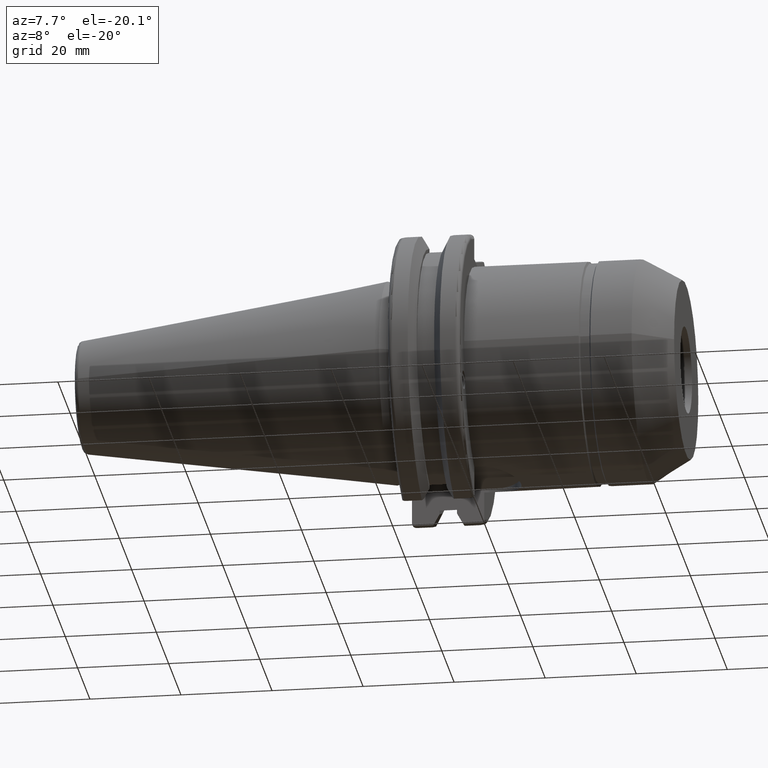
[diagram: clean part render]
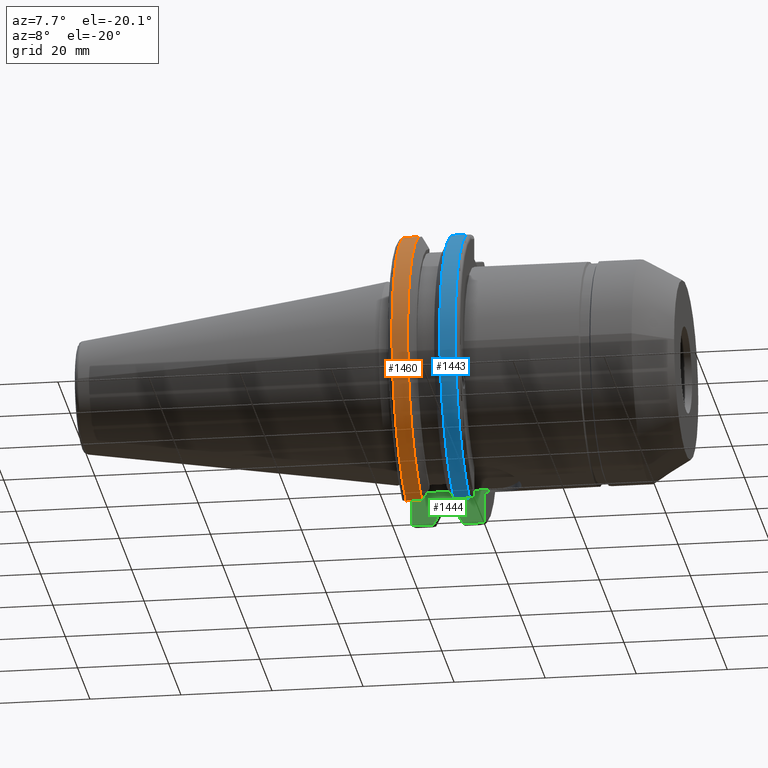
[diagram: same view with three faces highlighted in distinct colors, each labeled with its STEP entity id]
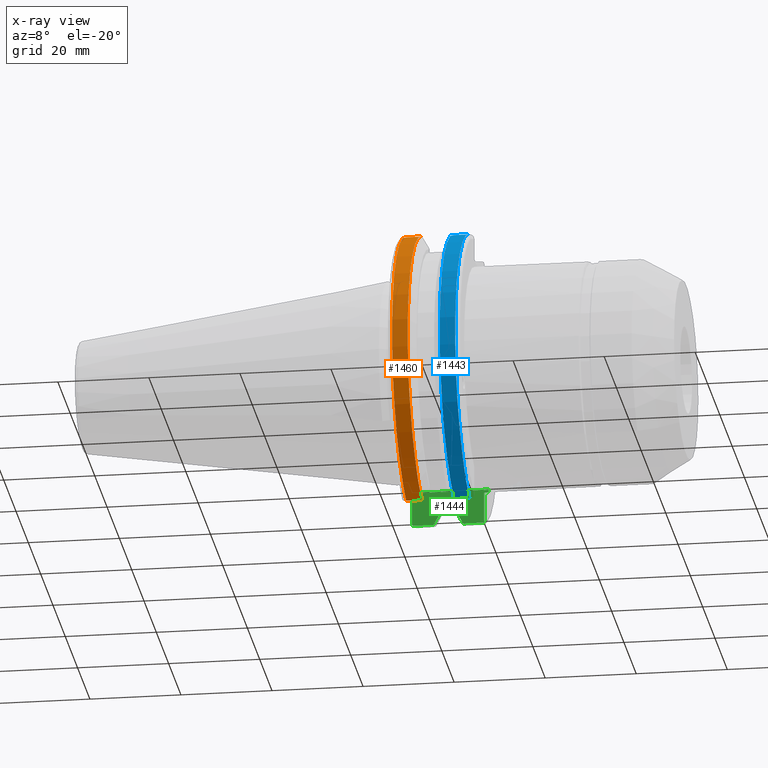
[diagram: x-ray of the same camera — body ghosted, the three highlighted faces saturated]
A machine part, auxiliary view with three faces highlighted in distinct colors.
The next image is the same camera in x-ray (body ghosted, the three faces saturated) — at least one of them is partly hidden behind the body in this view.
Their STEP definitions:

[orange] entity #1460 — the highlighted cylindrical surface (partial cylindrical patch) has radius 31.75 mm, axis along (1, 0, 0).
#221=FACE_OUTER_BOUND('',#317,.T.);
#317=EDGE_LOOP('',(#1325,#1326,#1327,#1328));
#386=LINE('',#2647,#467);
#391=LINE('',#2714,#472);
#467=VECTOR('',#1987,10.);
#472=VECTOR('',#2024,10.);
#535=CIRCLE('',#1613,31.75);
#554=CIRCLE('',#1660,31.75);
#671=VERTEX_POINT('',#2626);
#672=VERTEX_POINT('',#2635);
#673=VERTEX_POINT('',#2646);
#685=VERTEX_POINT('',#2710);
#862=EDGE_CURVE('',#671,#672,#535,.T.);
#864=EDGE_CURVE('',#672,#673,#386,.T.);
#884=EDGE_CURVE('',#685,#671,#391,.T.);
#912=EDGE_CURVE('',#673,#685,#554,.T.);
#1325=ORIENTED_EDGE('',*,*,#862,.F.);
#1326=ORIENTED_EDGE('',*,*,#884,.F.);
#1327=ORIENTED_EDGE('',*,*,#912,.F.);
#1328=ORIENTED_EDGE('',*,*,#864,.F.);
#1381=CYLINDRICAL_SURFACE('',#1659,31.75);
#1460=ADVANCED_FACE('',(#221),#1381,.T.);
#1613=AXIS2_PLACEMENT_3D('',#2636,#1983,#1984);
#1659=AXIS2_PLACEMENT_3D('',#2783,#2093,#2094);
#1660=AXIS2_PLACEMENT_3D('',#2784,#2095,#2096);
#1983=DIRECTION('center_axis',(-1.,0.,0.));
#1984=DIRECTION('ref_axis',(0.,-1.,1.60812264967664E-16));
#1987=DIRECTION('',(1.,0.,0.));
#2024=DIRECTION('',(-1.,0.,0.));
#2093=DIRECTION('center_axis',(1.,0.,0.));
#2094=DIRECTION('ref_axis',(0.,-1.,1.22464679914735E-16));
#2095=DIRECTION('center_axis',(1.,0.,0.));
#2096=DIRECTION('ref_axis',(0.,0.,-1.));
#2626=CARTESIAN_POINT('',(4.175,-8.67204822802685,-30.5427254764662));
#2635=CARTESIAN_POINT('',(4.175,-8.67204822802685,30.5427254764662));
#2636=CARTESIAN_POINT('Origin',(4.175,0.,0.));
#2646=CARTESIAN_POINT('',(7.60793323092436,-8.67204822802685,30.5427254764662));
#2647=CARTESIAN_POINT('',(5.39146661546218,-8.67204822802685,30.5427254764662));
#2710=CARTESIAN_POINT('',(7.60793323092436,-8.67204822802685,-30.5427254764662));
#2714=CARTESIAN_POINT('',(5.39146661546218,-8.67204822802685,-30.5427254764662));
#2783=CARTESIAN_POINT('Origin',(5.39146661546218,0.,0.));
#2784=CARTESIAN_POINT('Origin',(7.60793323092436,0.,0.));

[blue] entity #1443 — the highlighted cylindrical surface (partial cylindrical patch) has radius 31.75 mm, axis along (1, 0, 0).
#204=FACE_OUTER_BOUND('',#298,.T.);
#298=EDGE_LOOP('',(#1245,#1246,#1247,#1248));
#392=LINE('',#2717,#473);
#393=LINE('',#2723,#474);
#473=VECTOR('',#2027,10.);
#474=VECTOR('',#2030,10.);
#534=CIRCLE('',#1609,31.75);
#544=CIRCLE('',#1633,31.75);
#655=VERTEX_POINT('',#2555);
#656=VERTEX_POINT('',#2564);
#686=VERTEX_POINT('',#2716);
#687=VERTEX_POINT('',#2722);
#842=EDGE_CURVE('',#655,#656,#534,.T.);
#885=EDGE_CURVE('',#656,#686,#392,.T.);
#887=EDGE_CURVE('',#687,#655,#393,.T.);
#888=EDGE_CURVE('',#687,#686,#544,.T.);
#1245=ORIENTED_EDGE('',*,*,#842,.F.);
#1246=ORIENTED_EDGE('',*,*,#887,.F.);
#1247=ORIENTED_EDGE('',*,*,#888,.T.);
#1248=ORIENTED_EDGE('',*,*,#885,.F.);
#1376=CYLINDRICAL_SURFACE('',#1632,31.75);
#1443=ADVANCED_FACE('',(#204),#1376,.T.);
#1609=AXIS2_PLACEMENT_3D('',#2565,#1964,#1965);
#1632=AXIS2_PLACEMENT_3D('',#2721,#2028,#2029);
#1633=AXIS2_PLACEMENT_3D('',#2724,#2031,#2032);
#1964=DIRECTION('center_axis',(1.,0.,0.));
#1965=DIRECTION('ref_axis',(0.,-1.,1.60812264967664E-16));
#2027=DIRECTION('',(-1.,0.,0.));
#2028=DIRECTION('center_axis',(1.,0.,0.));
#2029=DIRECTION('ref_axis',(0.,-1.,1.22464679914735E-16));
#2030=DIRECTION('',(1.,0.,0.));
#2031=DIRECTION('center_axis',(1.,0.,0.));
#2032=DIRECTION('ref_axis',(0.,0.,-1.));
#2555=CARTESIAN_POINT('',(18.05,-8.67204822802685,30.5427254764662));
#2564=CARTESIAN_POINT('',(18.05,-8.67204822802686,-30.5427254764662));
#2565=CARTESIAN_POINT('Origin',(18.05,0.,0.));
#2716=CARTESIAN_POINT('',(14.6602667690756,-8.67204822802686,-30.5427254764662));
#2717=CARTESIAN_POINT('',(16.8551333845378,-8.67204822802686,-30.5427254764662));
#2721=CARTESIAN_POINT('Origin',(16.8551333845378,0.,0.));
#2722=CARTESIAN_POINT('',(14.6602667690756,-8.67204822802685,30.5427254764662));
#2723=CARTESIAN_POINT('',(16.8551333845378,-8.67204822802685,30.5427254764662));
#2724=CARTESIAN_POINT('Origin',(14.6602667690756,0.,0.));

[green] entity #1444 — the highlighted planar face has unit normal (-0, 1, 0).
#27=(
BOUNDED_CURVE()
B_SPLINE_CURVE(2,(#2727,#2728,#2729),.UNSPECIFIED.,.F.,.F.)
B_SPLINE_CURVE_WITH_KNOTS((3,3),(0.,0.276549142796136),.UNSPECIFIED.)
CURVE()
GEOMETRIC_REPRESENTATION_ITEM()
RATIONAL_B_SPLINE_CURVE((1.,1.00095203903316,1.00031614444813))
REPRESENTATION_ITEM('')
);
#28=(
BOUNDED_CURVE()
B_SPLINE_CURVE(2,(#2737,#2738,#2739),.UNSPECIFIED.,.F.,.F.)
B_SPLINE_CURVE_WITH_KNOTS((3,3),(0.0550586467393769,0.331607789535852),
 .UNSPECIFIED.)
CURVE()
GEOMETRIC_REPRESENTATION_ITEM()
RATIONAL_B_SPLINE_CURVE((1.00031614444922,1.00095203903643,1.))
REPRESENTATION_ITEM('')
);
#97=PLANE('',#1634);
#114=B_SPLINE_CURVE_WITH_KNOTS('',3,(#2472,#2473,#2474,#2475,#2476,#2477),
 .UNSPECIFIED.,.F.,.F.,(4,2,4),(0.452741154494497,0.491581665024871,0.505824174364157),
 .UNSPECIFIED.);
#128=B_SPLINE_CURVE_WITH_KNOTS('',3,(#2672,#2673,#2674,#2675,#2676,#2677),
 .UNSPECIFIED.,.F.,.F.,(4,2,4),(0.0977210450333169,0.111963554372601,0.150804064902975),
 .UNSPECIFIED.);
#205=FACE_OUTER_BOUND('',#299,.T.);
#299=EDGE_LOOP('',(#1249,#1250,#1251,#1252,#1253,#1254,#1255,#1256,#1257,
#1258,#1259,#1260,#1261,#1262));
#327=LINE('',#2157,#408);
#329=LINE('',#2162,#410);
#335=LINE('',#2208,#416);
#360=LINE('',#2454,#441);
#363=LINE('',#2498,#444);
#388=LINE('',#2685,#469);
#394=LINE('',#2731,#475);
#395=LINE('',#2733,#476);
#396=LINE('',#2735,#477);
#397=LINE('',#2740,#478);
#408=VECTOR('',#1696,10.);
#410=VECTOR('',#1700,10.);
#416=VECTOR('',#1754,10.);
#441=VECTOR('',#1929,10.);
#444=VECTOR('',#1944,10.);
#469=VECTOR('',#1995,10.);
#475=VECTOR('',#2035,10.);
#476=VECTOR('',#2036,10.);
#477=VECTOR('',#2037,10.);
#478=VECTOR('',#2038,10.);
#565=VERTEX_POINT('',#2134);
#567=VERTEX_POINT('',#2155);
#568=VERTEX_POINT('',#2159);
#585=VERTEX_POINT('',#2207);
#633=VERTEX_POINT('',#2452);
#637=VERTEX_POINT('',#2469);
#638=VERTEX_POINT('',#2471);
#676=VERTEX_POINT('',#2663);
#678=VERTEX_POINT('',#2681);
#688=VERTEX_POINT('',#2726);
#689=VERTEX_POINT('',#2730);
#690=VERTEX_POINT('',#2732);
#691=VERTEX_POINT('',#2734);
#692=VERTEX_POINT('',#2736);
#710=EDGE_CURVE('',#567,#565,#327,.T.);
#712=EDGE_CURVE('',#567,#568,#329,.T.);
#734=EDGE_CURVE('',#565,#585,#335,.T.);
#812=EDGE_CURVE('',#633,#568,#360,.T.);
#818=EDGE_CURVE('',#637,#638,#114,.T.);
#822=EDGE_CURVE('',#585,#637,#363,.T.);
#869=EDGE_CURVE('',#676,#633,#128,.T.);
#872=EDGE_CURVE('',#678,#676,#388,.T.);
#889=EDGE_CURVE('',#688,#678,#27,.T.);
#890=EDGE_CURVE('',#689,#688,#394,.T.);
#891=EDGE_CURVE('',#690,#689,#395,.T.);
#892=EDGE_CURVE('',#691,#690,#396,.T.);
#893=EDGE_CURVE('',#692,#691,#28,.T.);
#894=EDGE_CURVE('',#638,#692,#397,.T.);
#1249=ORIENTED_EDGE('',*,*,#818,.F.);
#1250=ORIENTED_EDGE('',*,*,#822,.F.);
#1251=ORIENTED_EDGE('',*,*,#734,.F.);
#1252=ORIENTED_EDGE('',*,*,#710,.F.);
#1253=ORIENTED_EDGE('',*,*,#712,.T.);
#1254=ORIENTED_EDGE('',*,*,#812,.F.);
#1255=ORIENTED_EDGE('',*,*,#869,.F.);
#1256=ORIENTED_EDGE('',*,*,#872,.F.);
#1257=ORIENTED_EDGE('',*,*,#889,.F.);
#1258=ORIENTED_EDGE('',*,*,#890,.F.);
#1259=ORIENTED_EDGE('',*,*,#891,.F.);
#1260=ORIENTED_EDGE('',*,*,#892,.F.);
#1261=ORIENTED_EDGE('',*,*,#893,.F.);
#1262=ORIENTED_EDGE('',*,*,#894,.F.);
#1444=ADVANCED_FACE('',(#205),#97,.F.);
#1634=AXIS2_PLACEMENT_3D('',#2725,#2033,#2034);
#1696=DIRECTION('',(0.,0.,-1.));
#1700=DIRECTION('',(-1.,-1.31581988103722E-16,0.));
#1754=DIRECTION('',(-1.,0.,0.));
#1929=DIRECTION('',(0.,0.,1.));
#1944=DIRECTION('',(0.,0.,-1.));
#1995=DIRECTION('',(-1.,-1.31581988103722E-16,0.));
#2033=DIRECTION('center_axis',(-1.31581988103722E-16,1.,0.));
#2034=DIRECTION('ref_axis',(1.,1.31581988103722E-16,0.));
#2035=DIRECTION('',(0.,0.,-1.));
#2036=DIRECTION('',(-1.,0.,0.));
#2037=DIRECTION('',(0.,0.,1.));
#2038=DIRECTION('',(-1.,-1.31581988103722E-16,0.));
#2134=CARTESIAN_POINT('',(20.05,8.19,-23.2231463199972));
#2155=CARTESIAN_POINT('',(20.05,8.19,-22.6));
#2157=CARTESIAN_POINT('',(20.05,8.19,-22.6));
#2159=CARTESIAN_POINT('',(3.175,8.19,-22.6));
#2162=CARTESIAN_POINT('',(20.05,8.19,-22.6));
#2207=CARTESIAN_POINT('',(19.05,8.19,-23.2231463199972));
#2208=CARTESIAN_POINT('',(31.6306624327026,8.19,-23.2231463199972));
#2452=CARTESIAN_POINT('',(3.175,8.18999999999999,-29.6392712461019));
#2454=CARTESIAN_POINT('',(3.175,8.18999999999999,-11.3));
#2469=CARTESIAN_POINT('',(19.05,8.19,-29.6392712461019));
#2471=CARTESIAN_POINT('',(18.9058722749097,8.19,-30.1755016258903));
#2472=CARTESIAN_POINT('Ctrl Pts',(19.05,8.19,-29.6392712461019));
#2473=CARTESIAN_POINT('Ctrl Pts',(19.05,8.19,-29.7687396145364));
#2474=CARTESIAN_POINT('Ctrl Pts',(19.0204855670831,8.19,-29.9212724384851));
#2475=CARTESIAN_POINT('Ctrl Pts',(18.9539643471756,8.19,-30.0852355256475));
#2476=CARTESIAN_POINT('Ctrl Pts',(18.9318163728133,8.19,-30.131014531546));
#2477=CARTESIAN_POINT('Ctrl Pts',(18.9058722749097,8.19,-30.1755016258903));
#2498=CARTESIAN_POINT('',(19.05,8.19,-11.3));
#2663=CARTESIAN_POINT('',(3.31912772509028,8.19,-30.1755016258903));
#2672=CARTESIAN_POINT('Ctrl Pts',(3.31912772509028,8.19,-30.1755016258903));
#2673=CARTESIAN_POINT('Ctrl Pts',(3.29318362718666,8.19,-30.131014531546));
#2674=CARTESIAN_POINT('Ctrl Pts',(3.27103565282437,8.19,-30.0852355256475));
#2675=CARTESIAN_POINT('Ctrl Pts',(3.20451443291695,8.19,-29.9212724384851));
#2676=CARTESIAN_POINT('Ctrl Pts',(3.175,8.19,-29.7687396145364));
#2677=CARTESIAN_POINT('Ctrl Pts',(3.175,8.19,-29.6392712461019));
#2681=CARTESIAN_POINT('',(7.88668530351257,8.19,-30.1755016258903));
#2685=CARTESIAN_POINT('',(5.39146661546218,8.19,-30.1755016258903));
#2725=CARTESIAN_POINT('Origin',(3.175,8.19,-22.6));
#2726=CARTESIAN_POINT('',(9.2191,8.19,-27.7771386827498));
#2727=CARTESIAN_POINT('Ctrl Pts',(9.2191,8.19,-27.7771386827498));
#2728=CARTESIAN_POINT('Ctrl Pts',(8.58046356152393,8.19,-28.9303689539705));
#2729=CARTESIAN_POINT('Ctrl Pts',(7.88668530351257,8.19,-30.1755016258903));
#2730=CARTESIAN_POINT('',(9.2191,8.19,-26.932255754021));
#2731=CARTESIAN_POINT('',(9.2191,8.18999999999999,-11.3));
#2732=CARTESIAN_POINT('',(13.0491,8.19,-26.932255754021));
#2733=CARTESIAN_POINT('',(11.1341,8.19,-26.932255754021));
#2734=CARTESIAN_POINT('',(13.0491,8.19,-27.7771386827498));
#2735=CARTESIAN_POINT('',(13.0491,8.19,-11.3));
#2736=CARTESIAN_POINT('',(14.3815146964874,8.19,-30.1755016258903));
#2737=CARTESIAN_POINT('Ctrl Pts',(14.3815146964874,8.18999999999999,-30.1755016258903));
#2738=CARTESIAN_POINT('Ctrl Pts',(13.687736438474,8.19,-28.9303689539668));
#2739=CARTESIAN_POINT('Ctrl Pts',(13.0491,8.19,-27.7771386827498));
#2740=CARTESIAN_POINT('',(16.8551333845378,8.19,-30.1755016258903));